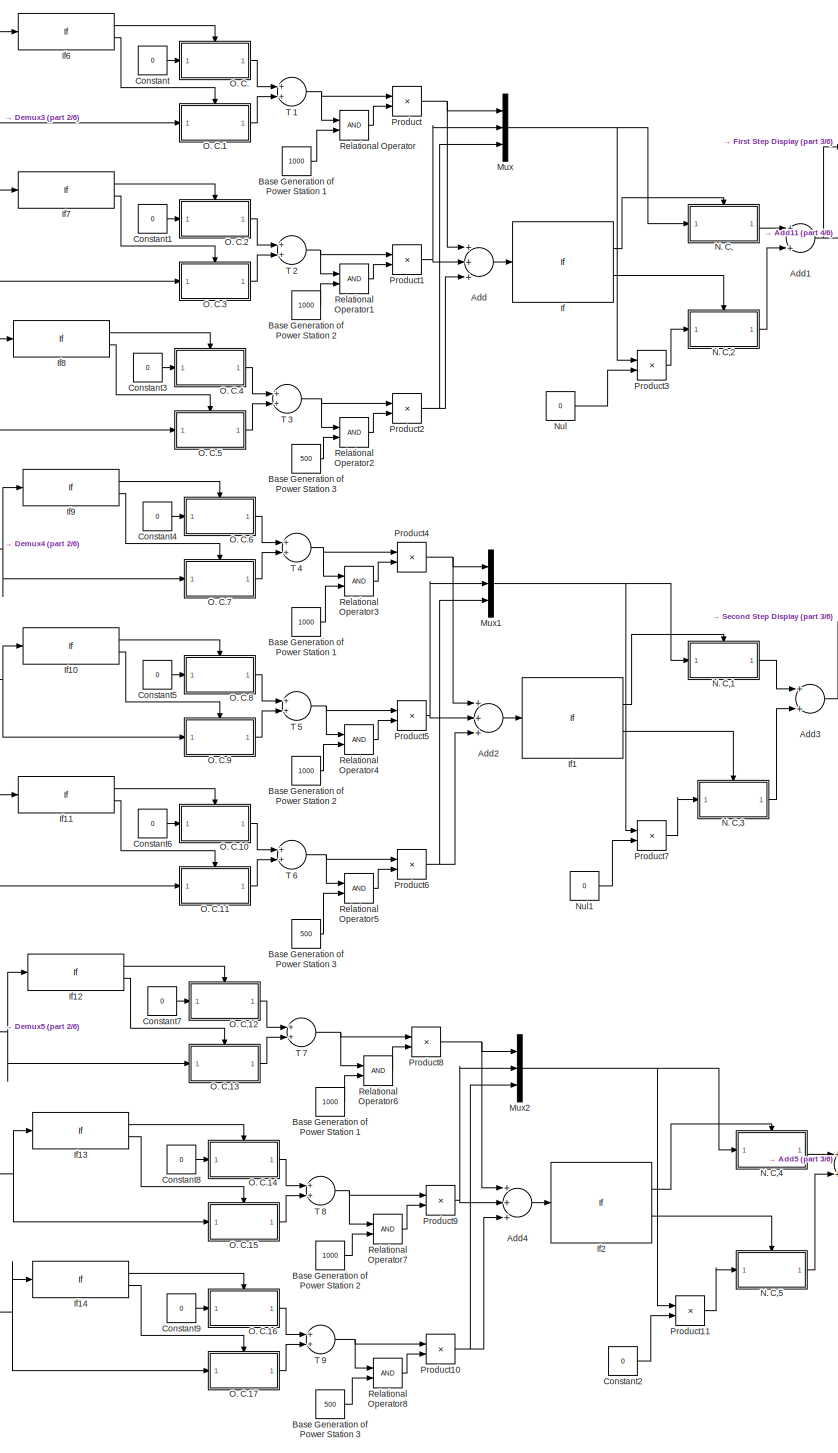
[diagram: root canvas - part 1/6, left side, full height]
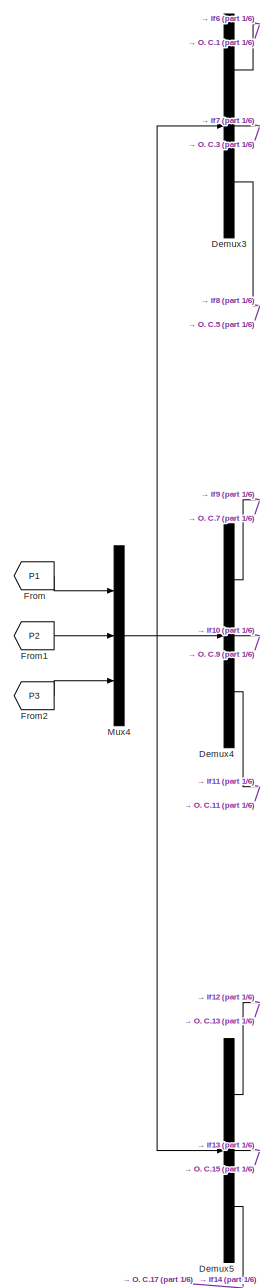
[diagram: root canvas - part 2/6, left side, full height]
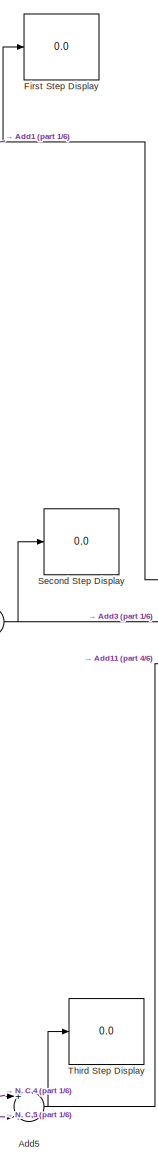
[diagram: root canvas - part 3/6, center side, full height]
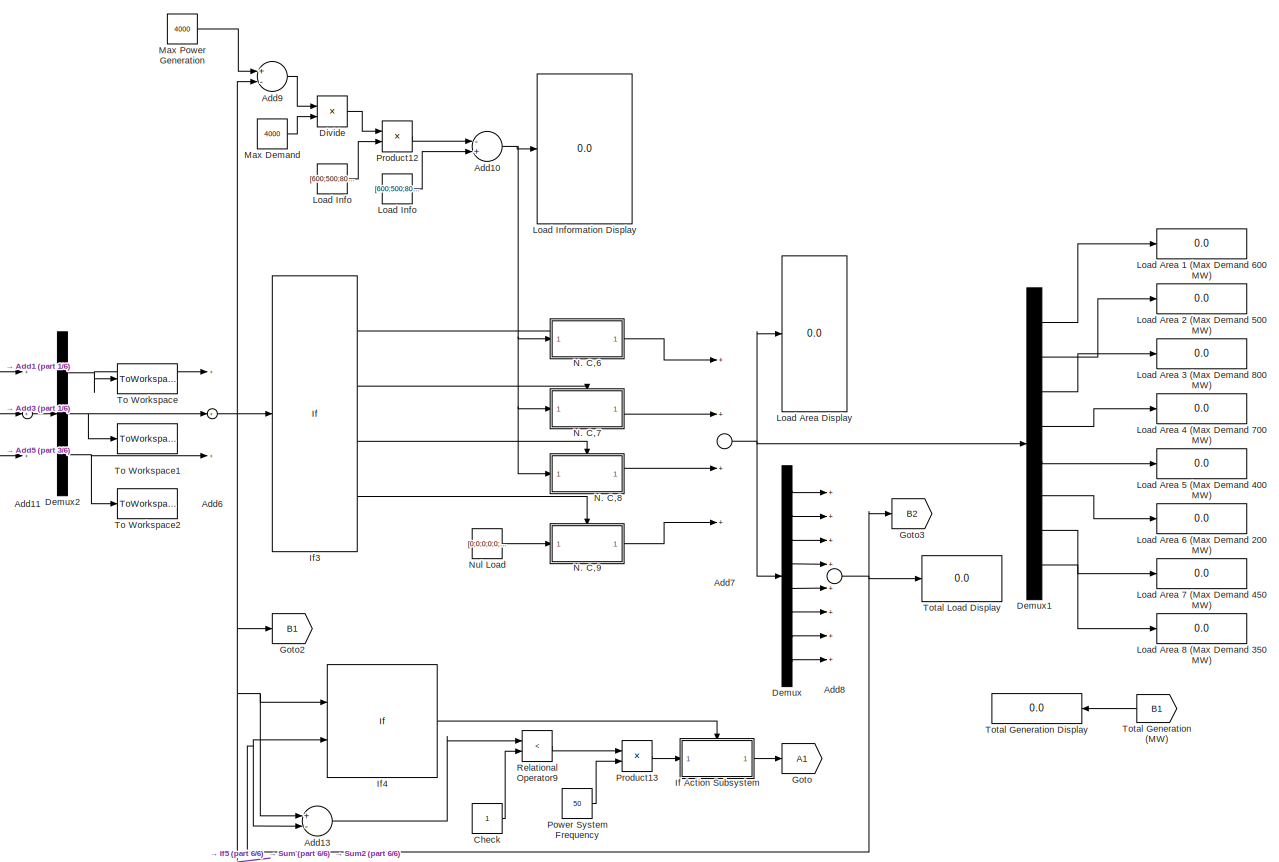
[diagram: root canvas - part 4/6, middle right region]
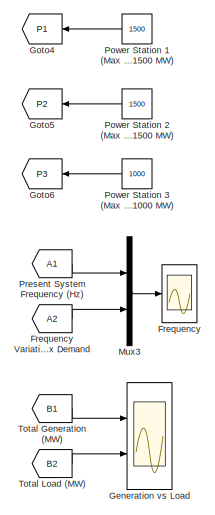
[diagram: root canvas - part 5/6, middle right region]
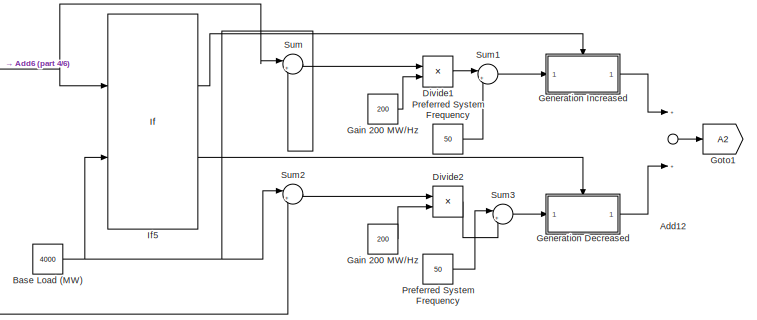
[diagram: root canvas - part 6/6, bottom right region]
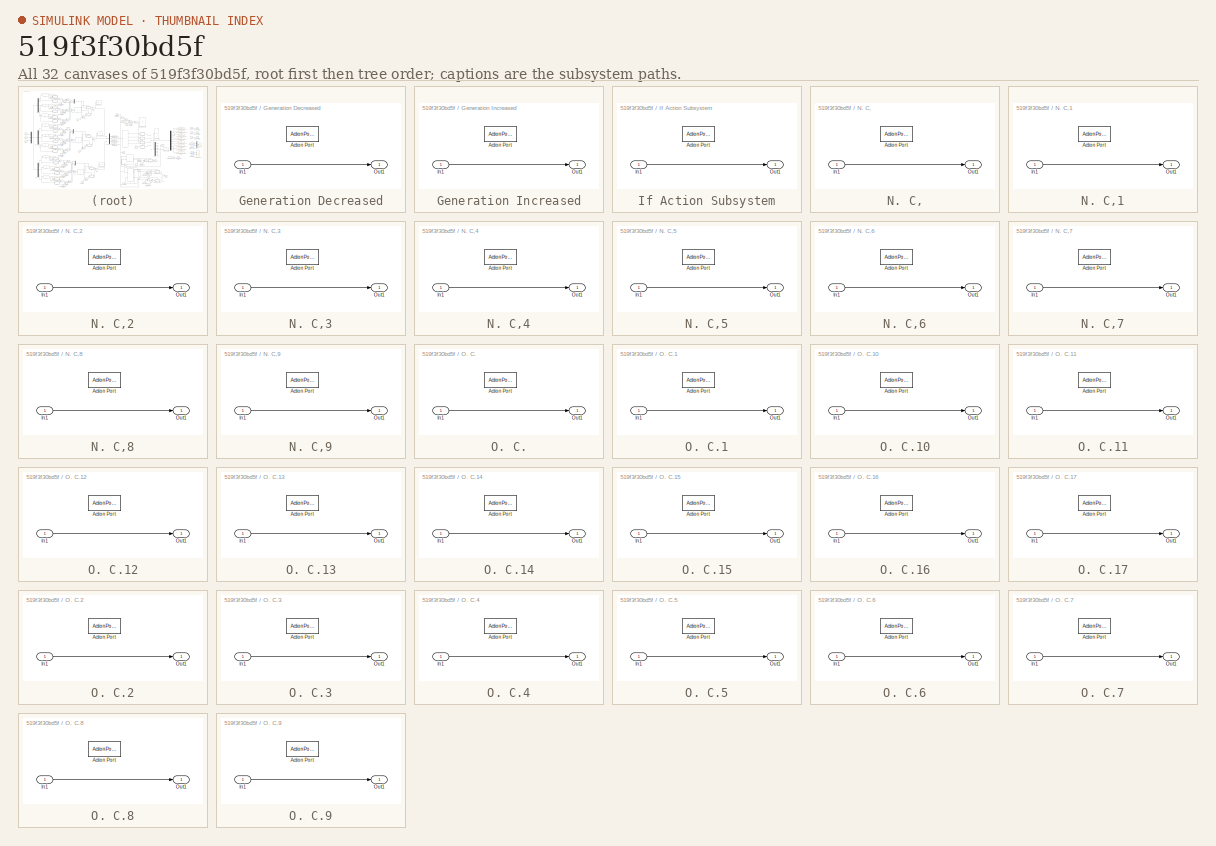
[diagram: thumbnail index - all 32 canvases of the model, root first then tree order]
MODEL slx_519f3f30bd5f
KIND model
BLOCK [Sum] Add
  InputSameDT = off
  Inputs = +++
  OutDataTypeStr = Inherit: Inherit via internal rule
  Ports = [3, 1]
  SaturateOnIntegerOverflow = off
BLOCK [Sum] Add1
  InputSameDT = off
  OutDataTypeStr = Inherit: Inherit via internal rule
  Ports = [2, 1]
  SaturateOnIntegerOverflow = off
BLOCK [Sum] Add10
  InputSameDT = off
  Inputs = -+
  OutDataTypeStr = Inherit: Inherit via internal rule
  Ports = [2, 1]
  SaturateOnIntegerOverflow = off
BLOCK [Sum] Add11
  InputSameDT = off
  Inputs = +++
  OutDataTypeStr = Inherit: Inherit via internal rule
  Ports = [3, 1]
  SaturateOnIntegerOverflow = off
BLOCK [Sum] Add12
  InputSameDT = off
  OutDataTypeStr = Inherit: Inherit via internal rule
  Ports = [2, 1]
  SaturateOnIntegerOverflow = off
BLOCK [Sum] Add13
  InputSameDT = off
  Inputs = +-
  OutDataTypeStr = Inherit: Inherit via internal rule
  Ports = [2, 1]
  SaturateOnIntegerOverflow = off
BLOCK [Sum] Add2
  InputSameDT = off
  Inputs = +++
  OutDataTypeStr = Inherit: Inherit via internal rule
  Ports = [3, 1]
  SaturateOnIntegerOverflow = off
BLOCK [Sum] Add3
  InputSameDT = off
  OutDataTypeStr = Inherit: Inherit via internal rule
  Ports = [2, 1]
  SaturateOnIntegerOverflow = off
BLOCK [Sum] Add4
  InputSameDT = off
  Inputs = +++
  OutDataTypeStr = Inherit: Inherit via internal rule
  Ports = [3, 1]
  SaturateOnIntegerOverflow = off
BLOCK [Sum] Add5
  InputSameDT = off
  OutDataTypeStr = Inherit: Inherit via internal rule
  Ports = [2, 1]
  SaturateOnIntegerOverflow = off
BLOCK [Sum] Add6
  InputSameDT = off
  Inputs = +++
  OutDataTypeStr = Inherit: Inherit via internal rule
  Ports = [3, 1]
  SaturateOnIntegerOverflow = off
BLOCK [Sum] Add7
  InputSameDT = off
  Inputs = ++++
  OutDataTypeStr = Inherit: Inherit via internal rule
  Ports = [4, 1]
  SaturateOnIntegerOverflow = off
BLOCK [Sum] Add8
  InputSameDT = off
  Inputs = ++++++++
  OutDataTypeStr = Inherit: Inherit via internal rule
  Ports = [8, 1]
  SaturateOnIntegerOverflow = off
BLOCK [Sum] Add9
  InputSameDT = off
  Inputs = +-
  OutDataTypeStr = Inherit: Inherit via internal rule
  Ports = [2, 1]
  SaturateOnIntegerOverflow = off
BLOCK [Constant] Base Generation of Power Station 1
  Value = 1000
BLOCK [Constant] Base Generation of Power Station 1 
  Value = 1000
BLOCK [Constant] Base Generation of Power Station 1  
  Value = 1000
BLOCK [Constant] Base Generation of Power Station 2
  Value = 1000
BLOCK [Constant] Base Generation of Power Station 2 
  Value = 1000
BLOCK [Constant] Base Generation of Power Station 2  
  Value = 1000
BLOCK [Constant] Base Generation of Power Station 3
  Value = 500
BLOCK [Constant] Base Generation of Power Station 3 
  Value = 500
BLOCK [Constant] Base Generation of Power Station 3  
  Value = 500
BLOCK [Constant] Base Load (MW)
  Value = 4000
BLOCK [Constant] Check
BLOCK [Constant] Constant
  Value = 0
BLOCK [Constant] Constant1
  Value = 0
BLOCK [Constant] Constant2
  Value = 0
BLOCK [Constant] Constant3
  Value = 0
BLOCK [Constant] Constant4
  Value = 0
BLOCK [Constant] Constant5
  Value = 0
BLOCK [Constant] Constant6
  Value = 0
BLOCK [Constant] Constant7
  Value = 0
BLOCK [Constant] Constant8
  Value = 0
BLOCK [Constant] Constant9
  Value = 0
BLOCK [Demux] Demux
  DisplayOption = bar
  Outputs = 8
  Ports = [1, 8]
BLOCK [Demux] Demux1
  DisplayOption = bar
  Outputs = 8
  Ports = [1, 8]
BLOCK [Demux] Demux2
  DisplayOption = bar
  Outputs = 3
  Ports = [1, 3]
BLOCK [Demux] Demux3
  DisplayOption = bar
  Outputs = 3
  Ports = [1, 3]
BLOCK [Demux] Demux4
  DisplayOption = bar
  Outputs = 3
  Ports = [1, 3]
BLOCK [Demux] Demux5
  DisplayOption = bar
  Outputs = 3
  Ports = [1, 3]
BLOCK [Product] Divide
  InputSameDT = off
  Inputs = */
  OutDataTypeStr = Inherit: Inherit via internal rule
  Ports = [2, 1]
  RndMeth = Floor
  SaturateOnIntegerOverflow = off
BLOCK [Product] Divide1
  InputSameDT = off
  Inputs = */
  OutDataTypeStr = Inherit: Inherit via internal rule
  Ports = [2, 1]
  RndMeth = Floor
  SaturateOnIntegerOverflow = off
BLOCK [Product] Divide2
  InputSameDT = off
  Inputs = */
  OutDataTypeStr = Inherit: Inherit via internal rule
  Ports = [2, 1]
  RndMeth = Floor
  SaturateOnIntegerOverflow = off
BLOCK [Display] First Step Display
  Decimation = 1
  Lockdown = off
  Ports = [1]
BLOCK [Scope] Frequency
  DataFormat = StructureWithTime
  Floating = off
  LegendLocations = 0.78941     0.86821     0.18082    0.052326
  NumInputPorts = 1
  Ports = [1]
  SampleTime = 0
  ShowLegends = on
  TickLabels = on
BLOCK [From] Frequency Variation w.r.t Max Demand
  GotoTag = A2
BLOCK [From] From
  GotoTag = P1
BLOCK [From] From1
  GotoTag = P2
BLOCK [From] From2
  GotoTag = P3
BLOCK [Constant] Gain 200 MW//Hz
  Value = 200
BLOCK [Constant] Gain 200 MW//Hz 
  Value = 200
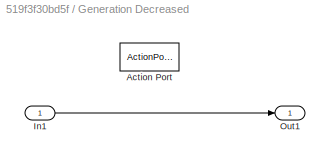
BLOCK [SubSystem] Generation Decreased
  FunctionWithSeparateData = off
  MaskHideContents = off
  MinAlgLoopOccurrences = off
  Opaque = off
  Ports = [1, 1, 0, 0, 0, 0, 0, 1]
  PropExecContextOutsideSubsystem = off
  RTWSystemCode = Auto
  RequestExecContextInheritance = off
  TreatAsAtomicUnit = on
BLOCK [ActionPort] Generation Decreased/Action Port
  ActionType = elseif
BLOCK [Inport] Generation Decreased/In1
  IconDisplay = Port number
BLOCK [Outport] Generation Decreased/Out1
  IconDisplay = Port number
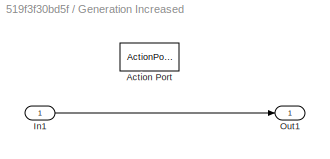
BLOCK [SubSystem] Generation Increased
  FunctionWithSeparateData = off
  MaskHideContents = off
  MinAlgLoopOccurrences = off
  Opaque = off
  Ports = [1, 1, 0, 0, 0, 0, 0, 1]
  PropExecContextOutsideSubsystem = off
  RTWSystemCode = Auto
  RequestExecContextInheritance = off
  TreatAsAtomicUnit = on
BLOCK [ActionPort] Generation Increased/Action Port
  ActionType = then
BLOCK [Inport] Generation Increased/In1
  IconDisplay = Port number
BLOCK [Outport] Generation Increased/Out1
  IconDisplay = Port number
BLOCK [Scope] Generation vs Load
  DataFormat = StructureWithTime
  Floating = off
  LegendLocations = 0.85639     0.91642     0.12152    0.029554\n0.87689     0.45131     0.10102    0.029554
  NumInputPorts = 2
  Ports = [2]
  SampleTime = 0
  SaveName = ScopeData1
  ShowLegends = on
  YMax = 5~5
  YMin = -5~-5
BLOCK [Goto] Goto
  GotoTag = A1
BLOCK [Goto] Goto1
  GotoTag = A2
BLOCK [Goto] Goto2
  GotoTag = B1
BLOCK [Goto] Goto3
  GotoTag = B2
BLOCK [Goto] Goto4
  GotoTag = P1
BLOCK [Goto] Goto5
  GotoTag = P2
BLOCK [Goto] Goto6
  GotoTag = P3
BLOCK [If] If
  IfExpression = u1 <= 4000 & u1>=2500
  Ports = [1, 2]
BLOCK [SubSystem] If Action Subsystem
  FunctionWithSeparateData = off
  MaskHideContents = off
  MinAlgLoopOccurrences = off
  Opaque = off
  Ports = [1, 1, 0, 0, 0, 0, 0, 1]
  PropExecContextOutsideSubsystem = off
  RTWSystemCode = Auto
  RequestExecContextInheritance = off
  TreatAsAtomicUnit = on
BLOCK [ActionPort] If Action Subsystem/Action Port
  ActionType = then
BLOCK [Inport] If Action Subsystem/In1
  IconDisplay = Port number
BLOCK [Outport] If Action Subsystem/Out1
  IconDisplay = Port number
BLOCK [If] If1
  IfExpression = u1 < 2500 & u1 >= 1500
  Ports = [1, 2]
BLOCK [If] If10
  IfExpression = u1 > 1500
  Ports = [1, 2]
BLOCK [If] If11
  IfExpression = u1 > 1000
  Ports = [1, 2]
BLOCK [If] If12
  IfExpression = u1 > 1500
  Ports = [1, 2]
BLOCK [If] If13
  IfExpression = u1 > 1500
  Ports = [1, 2]
BLOCK [If] If14
  IfExpression = u1 > 1000
  Ports = [1, 2]
BLOCK [If] If2
  IfExpression = u1 < 1500 & u1 >= 500
  Ports = [1, 2]
BLOCK [If] If3
  ElseIfExpressions = u1 < 2500 & u1 >= 1500, u1 < 1500 & u1 >= 500
  IfExpression = u1 <= 4000 & u1>=2500
  Ports = [1, 4]
BLOCK [If] If4
  IfExpression = u1 >0 & u2>0
  NumInputs = 2
  Ports = [2, 1]
  ShowElse = off
BLOCK [If] If5
  ElseIfExpressions = u1<u2
  IfExpression = u1>u2
  NumInputs = 2
  Ports = [2, 2]
  ShowElse = off
BLOCK [If] If6
  IfExpression = u1 > 1500
  Ports = [1, 2]
BLOCK [If] If7
  IfExpression = u1 > 1500
  Ports = [1, 2]
BLOCK [If] If8
  IfExpression = u1 > 1000
  Ports = [1, 2]
BLOCK [If] If9
  IfExpression = u1 > 1500
  Ports = [1, 2]
BLOCK [Display] Load Area 1 (Max Demand 600 MW)
  Decimation = 1
  Lockdown = off
  Ports = [1]
BLOCK [Display] Load Area 2 (Max Demand 500 MW)
  Decimation = 1
  Lockdown = off
  Ports = [1]
BLOCK [Display] Load Area 3 (Max Demand 800 MW)
  Decimation = 1
  Lockdown = off
  Ports = [1]
BLOCK [Display] Load Area 4 (Max Demand 700 MW)
  Decimation = 1
  Lockdown = off
  Ports = [1]
BLOCK [Display] Load Area 5 (Max Demand 400 MW)
  Decimation = 1
  Lockdown = off
  Ports = [1]
BLOCK [Display] Load Area 6 (Max Demand 200 MW)
  Decimation = 1
  Lockdown = off
  Ports = [1]
BLOCK [Display] Load Area 7 (Max Demand 450 MW)
  Decimation = 1
  Lockdown = off
  Ports = [1]
BLOCK [Display] Load Area 8 (Max Demand 350 MW)
  Decimation = 1
  Lockdown = off
  Ports = [1]
BLOCK [Display] Load Area Display
  Decimation = 1
  Lockdown = off
  Ports = [1]
BLOCK [Constant] Load Info
  Value = [600;500;800;700;400;200;450;350]
BLOCK [Constant] Load Info 
  Value = [600;500;800;700;400;200;450;350]
BLOCK [Display] Load Information Display
  Decimation = 1
  Lockdown = off
  Ports = [1]
BLOCK [Constant] Max Demand
  Value = 4000
BLOCK [Constant] Max Power Generation
  Value = 4000
BLOCK [Mux] Mux
  DisplayOption = bar
  Inputs = 3
  Ports = [3, 1]
BLOCK [Mux] Mux1
  DisplayOption = bar
  Inputs = 3
  Ports = [3, 1]
BLOCK [Mux] Mux2
  DisplayOption = bar
  Inputs = 3
  Ports = [3, 1]
BLOCK [Mux] Mux3
  DisplayOption = bar
  Inputs = 2
  Ports = [2, 1]
BLOCK [Mux] Mux4
  DisplayOption = bar
  Inputs = 3
  Ports = [3, 1]
BLOCK [SubSystem] N. C,
  FunctionWithSeparateData = off
  MaskHideContents = off
  MinAlgLoopOccurrences = off
  Opaque = off
  Ports = [1, 1, 0, 0, 0, 0, 0, 1]
  PropExecContextOutsideSubsystem = off
  RTWSystemCode = Auto
  RequestExecContextInheritance = off
  TreatAsAtomicUnit = on
BLOCK [ActionPort] N. C,/Action Port
  ActionType = then
BLOCK [Inport] N. C,/In1
  IconDisplay = Port number
BLOCK [Outport] N. C,/Out1
  IconDisplay = Port number
BLOCK [SubSystem] N. C,1
  FunctionWithSeparateData = off
  MaskHideContents = off
  MinAlgLoopOccurrences = off
  Opaque = off
  Ports = [1, 1, 0, 0, 0, 0, 0, 1]
  PropExecContextOutsideSubsystem = off
  RTWSystemCode = Auto
  RequestExecContextInheritance = off
  TreatAsAtomicUnit = on
BLOCK [ActionPort] N. C,1/Action Port
  ActionType = then
BLOCK [Inport] N. C,1/In1
  IconDisplay = Port number
BLOCK [Outport] N. C,1/Out1
  IconDisplay = Port number
BLOCK [SubSystem] N. C,2
  FunctionWithSeparateData = off
  MaskHideContents = off
  MinAlgLoopOccurrences = off
  Opaque = off
  Ports = [1, 1, 0, 0, 0, 0, 0, 1]
  PropExecContextOutsideSubsystem = off
  RTWSystemCode = Auto
  RequestExecContextInheritance = off
  TreatAsAtomicUnit = on
BLOCK [ActionPort] N. C,2/Action Port
  ActionType = else
BLOCK [Inport] N. C,2/In1
  IconDisplay = Port number
BLOCK [Outport] N. C,2/Out1
  IconDisplay = Port number
BLOCK [SubSystem] N. C,3
  FunctionWithSeparateData = off
  MaskHideContents = off
  MinAlgLoopOccurrences = off
  Opaque = off
  Ports = [1, 1, 0, 0, 0, 0, 0, 1]
  PropExecContextOutsideSubsystem = off
  RTWSystemCode = Auto
  RequestExecContextInheritance = off
  TreatAsAtomicUnit = on
BLOCK [ActionPort] N. C,3/Action Port
  ActionType = else
BLOCK [Inport] N. C,3/In1
  IconDisplay = Port number
BLOCK [Outport] N. C,3/Out1
  IconDisplay = Port number
BLOCK [SubSystem] N. C,4
  FunctionWithSeparateData = off
  MaskHideContents = off
  MinAlgLoopOccurrences = off
  Opaque = off
  Ports = [1, 1, 0, 0, 0, 0, 0, 1]
  PropExecContextOutsideSubsystem = off
  RTWSystemCode = Auto
  RequestExecContextInheritance = off
  TreatAsAtomicUnit = on
BLOCK [ActionPort] N. C,4/Action Port
  ActionType = then
BLOCK [Inport] N. C,4/In1
  IconDisplay = Port number
BLOCK [Outport] N. C,4/Out1
  IconDisplay = Port number
BLOCK [SubSystem] N. C,5
  FunctionWithSeparateData = off
  MaskHideContents = off
  MinAlgLoopOccurrences = off
  Opaque = off
  Ports = [1, 1, 0, 0, 0, 0, 0, 1]
  PropExecContextOutsideSubsystem = off
  RTWSystemCode = Auto
  RequestExecContextInheritance = off
  TreatAsAtomicUnit = on
BLOCK [ActionPort] N. C,5/Action Port
  ActionType = else
BLOCK [Inport] N. C,5/In1
  IconDisplay = Port number
BLOCK [Outport] N. C,5/Out1
  IconDisplay = Port number
BLOCK [SubSystem] N. C,6
  FunctionWithSeparateData = off
  MaskHideContents = off
  MinAlgLoopOccurrences = off
  Opaque = off
  Ports = [1, 1, 0, 0, 0, 0, 0, 1]
  PropExecContextOutsideSubsystem = off
  RTWSystemCode = Auto
  RequestExecContextInheritance = off
  TreatAsAtomicUnit = on
BLOCK [ActionPort] N. C,6/Action Port
  ActionType = then
BLOCK [Inport] N. C,6/In1
  IconDisplay = Port number
BLOCK [Outport] N. C,6/Out1
  IconDisplay = Port number
BLOCK [SubSystem] N. C,7
  FunctionWithSeparateData = off
  MaskHideContents = off
  MinAlgLoopOccurrences = off
  Opaque = off
  Ports = [1, 1, 0, 0, 0, 0, 0, 1]
  PropExecContextOutsideSubsystem = off
  RTWSystemCode = Auto
  RequestExecContextInheritance = off
  TreatAsAtomicUnit = on
BLOCK [ActionPort] N. C,7/Action Port
  ActionType = elseif
BLOCK [Inport] N. C,7/In1
  IconDisplay = Port number
BLOCK [Outport] N. C,7/Out1
  IconDisplay = Port number
BLOCK [SubSystem] N. C,8
  FunctionWithSeparateData = off
  MaskHideContents = off
  MinAlgLoopOccurrences = off
  Opaque = off
  Ports = [1, 1, 0, 0, 0, 0, 0, 1]
  PropExecContextOutsideSubsystem = off
  RTWSystemCode = Auto
  RequestExecContextInheritance = off
  TreatAsAtomicUnit = on
BLOCK [ActionPort] N. C,8/Action Port
  ActionType = elseif
BLOCK [Inport] N. C,8/In1
  IconDisplay = Port number
BLOCK [Outport] N. C,8/Out1
  IconDisplay = Port number
BLOCK [SubSystem] N. C,9
  FunctionWithSeparateData = off
  MaskHideContents = off
  MinAlgLoopOccurrences = off
  Opaque = off
  Ports = [1, 1, 0, 0, 0, 0, 0, 1]
  PropExecContextOutsideSubsystem = off
  RTWSystemCode = Auto
  RequestExecContextInheritance = off
  TreatAsAtomicUnit = on
BLOCK [ActionPort] N. C,9/Action Port
  ActionType = else
BLOCK [Inport] N. C,9/In1
  IconDisplay = Port number
BLOCK [Outport] N. C,9/Out1
  IconDisplay = Port number
BLOCK [Constant] Nul
  Value = 0
BLOCK [Constant] Nul Load
  Value = [0;0;0;0;0;0;0;0]
BLOCK [Constant] Nul1
  Value = 0
BLOCK [SubSystem] O. C.
  FunctionWithSeparateData = off
  MaskHideContents = off
  MinAlgLoopOccurrences = off
  Opaque = off
  Ports = [1, 1, 0, 0, 0, 0, 0, 1]
  PropExecContextOutsideSubsystem = off
  RTWSystemCode = Auto
  RequestExecContextInheritance = off
  TreatAsAtomicUnit = on
BLOCK [ActionPort] O. C./Action Port
  ActionType = then
BLOCK [Inport] O. C./In1
  IconDisplay = Port number
BLOCK [Outport] O. C./Out1
  IconDisplay = Port number
BLOCK [SubSystem] O. C.1
  FunctionWithSeparateData = off
  MaskHideContents = off
  MinAlgLoopOccurrences = off
  Opaque = off
  Ports = [1, 1, 0, 0, 0, 0, 0, 1]
  PropExecContextOutsideSubsystem = off
  RTWSystemCode = Auto
  RequestExecContextInheritance = off
  TreatAsAtomicUnit = on
BLOCK [ActionPort] O. C.1/Action Port
  ActionType = else
BLOCK [Inport] O. C.1/In1
  IconDisplay = Port number
BLOCK [Outport] O. C.1/Out1
  IconDisplay = Port number
BLOCK [SubSystem] O. C.10
  FunctionWithSeparateData = off
  MaskHideContents = off
  MinAlgLoopOccurrences = off
  Opaque = off
  Ports = [1, 1, 0, 0, 0, 0, 0, 1]
  PropExecContextOutsideSubsystem = off
  RTWSystemCode = Auto
  RequestExecContextInheritance = off
  TreatAsAtomicUnit = on
BLOCK [ActionPort] O. C.10/Action Port
  ActionType = then
BLOCK [Inport] O. C.10/In1
  IconDisplay = Port number
BLOCK [Outport] O. C.10/Out1
  IconDisplay = Port number
BLOCK [SubSystem] O. C.11
  FunctionWithSeparateData = off
  MaskHideContents = off
  MinAlgLoopOccurrences = off
  Opaque = off
  Ports = [1, 1, 0, 0, 0, 0, 0, 1]
  PropExecContextOutsideSubsystem = off
  RTWSystemCode = Auto
  RequestExecContextInheritance = off
  TreatAsAtomicUnit = on
BLOCK [ActionPort] O. C.11/Action Port
  ActionType = else
BLOCK [Inport] O. C.11/In1
  IconDisplay = Port number
BLOCK [Outport] O. C.11/Out1
  IconDisplay = Port number
BLOCK [SubSystem] O. C.12
  FunctionWithSeparateData = off
  MaskHideContents = off
  MinAlgLoopOccurrences = off
  Opaque = off
  Ports = [1, 1, 0, 0, 0, 0, 0, 1]
  PropExecContextOutsideSubsystem = off
  RTWSystemCode = Auto
  RequestExecContextInheritance = off
  TreatAsAtomicUnit = on
BLOCK [ActionPort] O. C.12/Action Port
  ActionType = then
BLOCK [Inport] O. C.12/In1
  IconDisplay = Port number
BLOCK [Outport] O. C.12/Out1
  IconDisplay = Port number
BLOCK [SubSystem] O. C.13
  FunctionWithSeparateData = off
  MaskHideContents = off
  MinAlgLoopOccurrences = off
  Opaque = off
  Ports = [1, 1, 0, 0, 0, 0, 0, 1]
  PropExecContextOutsideSubsystem = off
  RTWSystemCode = Auto
  RequestExecContextInheritance = off
  TreatAsAtomicUnit = on
BLOCK [ActionPort] O. C.13/Action Port
  ActionType = else
BLOCK [Inport] O. C.13/In1
  IconDisplay = Port number
BLOCK [Outport] O. C.13/Out1
  IconDisplay = Port number
BLOCK [SubSystem] O. C.14
  FunctionWithSeparateData = off
  MaskHideContents = off
  MinAlgLoopOccurrences = off
  Opaque = off
  Ports = [1, 1, 0, 0, 0, 0, 0, 1]
  PropExecContextOutsideSubsystem = off
  RTWSystemCode = Auto
  RequestExecContextInheritance = off
  TreatAsAtomicUnit = on
BLOCK [ActionPort] O. C.14/Action Port
  ActionType = then
BLOCK [Inport] O. C.14/In1
  IconDisplay = Port number
BLOCK [Outport] O. C.14/Out1
  IconDisplay = Port number
BLOCK [SubSystem] O. C.15
  FunctionWithSeparateData = off
  MaskHideContents = off
  MinAlgLoopOccurrences = off
  Opaque = off
  Ports = [1, 1, 0, 0, 0, 0, 0, 1]
  PropExecContextOutsideSubsystem = off
  RTWSystemCode = Auto
  RequestExecContextInheritance = off
  TreatAsAtomicUnit = on
BLOCK [ActionPort] O. C.15/Action Port
  ActionType = else
BLOCK [Inport] O. C.15/In1
  IconDisplay = Port number
BLOCK [Outport] O. C.15/Out1
  IconDisplay = Port number
BLOCK [SubSystem] O. C.16
  FunctionWithSeparateData = off
  MaskHideContents = off
  MinAlgLoopOccurrences = off
  Opaque = off
  Ports = [1, 1, 0, 0, 0, 0, 0, 1]
  PropExecContextOutsideSubsystem = off
  RTWSystemCode = Auto
  RequestExecContextInheritance = off
  TreatAsAtomicUnit = on
BLOCK [ActionPort] O. C.16/Action Port
  ActionType = then
BLOCK [Inport] O. C.16/In1
  IconDisplay = Port number
BLOCK [Outport] O. C.16/Out1
  IconDisplay = Port number
BLOCK [SubSystem] O. C.17
  FunctionWithSeparateData = off
  MaskHideContents = off
  MinAlgLoopOccurrences = off
  Opaque = off
  Ports = [1, 1, 0, 0, 0, 0, 0, 1]
  PropExecContextOutsideSubsystem = off
  RTWSystemCode = Auto
  RequestExecContextInheritance = off
  TreatAsAtomicUnit = on
BLOCK [ActionPort] O. C.17/Action Port
  ActionType = else
BLOCK [Inport] O. C.17/In1
  IconDisplay = Port number
BLOCK [Outport] O. C.17/Out1
  IconDisplay = Port number
BLOCK [SubSystem] O. C.2
  FunctionWithSeparateData = off
  MaskHideContents = off
  MinAlgLoopOccurrences = off
  Opaque = off
  Ports = [1, 1, 0, 0, 0, 0, 0, 1]
  PropExecContextOutsideSubsystem = off
  RTWSystemCode = Auto
  RequestExecContextInheritance = off
  TreatAsAtomicUnit = on
BLOCK [ActionPort] O. C.2/Action Port
  ActionType = then
BLOCK [Inport] O. C.2/In1
  IconDisplay = Port number
BLOCK [Outport] O. C.2/Out1
  IconDisplay = Port number
BLOCK [SubSystem] O. C.3
  FunctionWithSeparateData = off
  MaskHideContents = off
  MinAlgLoopOccurrences = off
  Opaque = off
  Ports = [1, 1, 0, 0, 0, 0, 0, 1]
  PropExecContextOutsideSubsystem = off
  RTWSystemCode = Auto
  RequestExecContextInheritance = off
  TreatAsAtomicUnit = on
BLOCK [ActionPort] O. C.3/Action Port
  ActionType = else
BLOCK [Inport] O. C.3/In1
  IconDisplay = Port number
BLOCK [Outport] O. C.3/Out1
  IconDisplay = Port number
BLOCK [SubSystem] O. C.4
  FunctionWithSeparateData = off
  MaskHideContents = off
  MinAlgLoopOccurrences = off
  Opaque = off
  Ports = [1, 1, 0, 0, 0, 0, 0, 1]
  PropExecContextOutsideSubsystem = off
  RTWSystemCode = Auto
  RequestExecContextInheritance = off
  TreatAsAtomicUnit = on
BLOCK [ActionPort] O. C.4/Action Port
  ActionType = then
BLOCK [Inport] O. C.4/In1
  IconDisplay = Port number
BLOCK [Outport] O. C.4/Out1
  IconDisplay = Port number
BLOCK [SubSystem] O. C.5
  FunctionWithSeparateData = off
  MaskHideContents = off
  MinAlgLoopOccurrences = off
  Opaque = off
  Ports = [1, 1, 0, 0, 0, 0, 0, 1]
  PropExecContextOutsideSubsystem = off
  RTWSystemCode = Auto
  RequestExecContextInheritance = off
  TreatAsAtomicUnit = on
BLOCK [ActionPort] O. C.5/Action Port
  ActionType = else
BLOCK [Inport] O. C.5/In1
  IconDisplay = Port number
BLOCK [Outport] O. C.5/Out1
  IconDisplay = Port number
BLOCK [SubSystem] O. C.6
  FunctionWithSeparateData = off
  MaskHideContents = off
  MinAlgLoopOccurrences = off
  Opaque = off
  Ports = [1, 1, 0, 0, 0, 0, 0, 1]
  PropExecContextOutsideSubsystem = off
  RTWSystemCode = Auto
  RequestExecContextInheritance = off
  TreatAsAtomicUnit = on
BLOCK [ActionPort] O. C.6/Action Port
  ActionType = then
BLOCK [Inport] O. C.6/In1
  IconDisplay = Port number
BLOCK [Outport] O. C.6/Out1
  IconDisplay = Port number
BLOCK [SubSystem] O. C.7
  FunctionWithSeparateData = off
  MaskHideContents = off
  MinAlgLoopOccurrences = off
  Opaque = off
  Ports = [1, 1, 0, 0, 0, 0, 0, 1]
  PropExecContextOutsideSubsystem = off
  RTWSystemCode = Auto
  RequestExecContextInheritance = off
  TreatAsAtomicUnit = on
BLOCK [ActionPort] O. C.7/Action Port
  ActionType = else
BLOCK [Inport] O. C.7/In1
  IconDisplay = Port number
BLOCK [Outport] O. C.7/Out1
  IconDisplay = Port number
BLOCK [SubSystem] O. C.8
  FunctionWithSeparateData = off
  MaskHideContents = off
  MinAlgLoopOccurrences = off
  Opaque = off
  Ports = [1, 1, 0, 0, 0, 0, 0, 1]
  PropExecContextOutsideSubsystem = off
  RTWSystemCode = Auto
  RequestExecContextInheritance = off
  TreatAsAtomicUnit = on
BLOCK [ActionPort] O. C.8/Action Port
  ActionType = then
BLOCK [Inport] O. C.8/In1
  IconDisplay = Port number
BLOCK [Outport] O. C.8/Out1
  IconDisplay = Port number
BLOCK [SubSystem] O. C.9
  FunctionWithSeparateData = off
  MaskHideContents = off
  MinAlgLoopOccurrences = off
  Opaque = off
  Ports = [1, 1, 0, 0, 0, 0, 0, 1]
  PropExecContextOutsideSubsystem = off
  RTWSystemCode = Auto
  RequestExecContextInheritance = off
  TreatAsAtomicUnit = on
BLOCK [ActionPort] O. C.9/Action Port
  ActionType = else
BLOCK [Inport] O. C.9/In1
  IconDisplay = Port number
BLOCK [Outport] O. C.9/Out1
  IconDisplay = Port number
BLOCK [Constant] Power Station 1 (Max Generation Capacity 1500 MW)
  Value = 1500
BLOCK [Constant] Power Station 2 (Max Generation Capacity 1500 MW)
  Value = 1500
BLOCK [Constant] Power Station 3 (Max Generation Capacity 1000 MW)
  Value = 1000
BLOCK [Constant] Power System Frequency
  Value = 50
BLOCK [Constant] Preferred System Frequency
  Value = 50
BLOCK [Constant] Preferred System Frequency 
  Value = 50
BLOCK [From] Present System Frequency (Hz)
  GotoTag = A1
BLOCK [Product] Product
  InputSameDT = off
  OutDataTypeStr = Inherit: Inherit via internal rule
  Ports = [2, 1]
  RndMeth = Floor
  SaturateOnIntegerOverflow = off
BLOCK [Product] Product1
  InputSameDT = off
  OutDataTypeStr = Inherit: Inherit via internal rule
  Ports = [2, 1]
  RndMeth = Floor
  SaturateOnIntegerOverflow = off
BLOCK [Product] Product10
  InputSameDT = off
  OutDataTypeStr = Inherit: Inherit via internal rule
  Ports = [2, 1]
  RndMeth = Floor
  SaturateOnIntegerOverflow = off
BLOCK [Product] Product11
  InputSameDT = off
  OutDataTypeStr = Inherit: Inherit via internal rule
  Ports = [2, 1]
  RndMeth = Floor
  SaturateOnIntegerOverflow = off
BLOCK [Product] Product12
  InputSameDT = off
  OutDataTypeStr = Inherit: Inherit via internal rule
  Ports = [2, 1]
  RndMeth = Floor
  SaturateOnIntegerOverflow = off
BLOCK [Product] Product13
  InputSameDT = off
  OutDataTypeStr = Inherit: Inherit via internal rule
  Ports = [2, 1]
  RndMeth = Floor
  SaturateOnIntegerOverflow = off
BLOCK [Product] Product2
  InputSameDT = off
  OutDataTypeStr = Inherit: Inherit via internal rule
  Ports = [2, 1]
  RndMeth = Floor
  SaturateOnIntegerOverflow = off
BLOCK [Product] Product3
  InputSameDT = off
  OutDataTypeStr = Inherit: Inherit via internal rule
  Ports = [2, 1]
  RndMeth = Floor
  SaturateOnIntegerOverflow = off
BLOCK [Product] Product4
  InputSameDT = off
  OutDataTypeStr = Inherit: Inherit via internal rule
  Ports = [2, 1]
  RndMeth = Floor
  SaturateOnIntegerOverflow = off
BLOCK [Product] Product5
  InputSameDT = off
  OutDataTypeStr = Inherit: Inherit via internal rule
  Ports = [2, 1]
  RndMeth = Floor
  SaturateOnIntegerOverflow = off
BLOCK [Product] Product6
  InputSameDT = off
  OutDataTypeStr = Inherit: Inherit via internal rule
  Ports = [2, 1]
  RndMeth = Floor
  SaturateOnIntegerOverflow = off
BLOCK [Product] Product7
  InputSameDT = off
  OutDataTypeStr = Inherit: Inherit via internal rule
  Ports = [2, 1]
  RndMeth = Floor
  SaturateOnIntegerOverflow = off
BLOCK [Product] Product8
  InputSameDT = off
  OutDataTypeStr = Inherit: Inherit via internal rule
  Ports = [2, 1]
  RndMeth = Floor
  SaturateOnIntegerOverflow = off
BLOCK [Product] Product9
  InputSameDT = off
  OutDataTypeStr = Inherit: Inherit via internal rule
  Ports = [2, 1]
  RndMeth = Floor
  SaturateOnIntegerOverflow = off
BLOCK [RelationalOperator] Relational Operator
  InputSameDT = off
  OutDataTypeStr = boolean
  Ports = [2, 1]
BLOCK [RelationalOperator] Relational Operator1
  InputSameDT = off
  OutDataTypeStr = boolean
  Ports = [2, 1]
BLOCK [RelationalOperator] Relational Operator2
  InputSameDT = off
  OutDataTypeStr = boolean
  Ports = [2, 1]
BLOCK [RelationalOperator] Relational Operator3
  InputSameDT = off
  OutDataTypeStr = boolean
  Ports = [2, 1]
BLOCK [RelationalOperator] Relational Operator4
  InputSameDT = off
  OutDataTypeStr = boolean
  Ports = [2, 1]
BLOCK [RelationalOperator] Relational Operator5
  InputSameDT = off
  OutDataTypeStr = boolean
  Ports = [2, 1]
BLOCK [RelationalOperator] Relational Operator6
  InputSameDT = off
  OutDataTypeStr = boolean
  Ports = [2, 1]
BLOCK [RelationalOperator] Relational Operator7
  InputSameDT = off
  OutDataTypeStr = boolean
  Ports = [2, 1]
BLOCK [RelationalOperator] Relational Operator8
  InputSameDT = off
  OutDataTypeStr = boolean
  Ports = [2, 1]
BLOCK [RelationalOperator] Relational Operator9
  InputSameDT = off
  Operator = <
  OutDataTypeStr = boolean
  Ports = [2, 1]
BLOCK [Display] Second Step Display
  Decimation = 1
  Lockdown = off
  Ports = [1]
BLOCK [Sum] Sum
  IconShape = round
  InputSameDT = off
  Inputs = |+-
  OutDataTypeStr = Inherit: Inherit via internal rule
  Ports = [2, 1]
  SaturateOnIntegerOverflow = off
BLOCK [Sum] Sum1
  IconShape = round
  InputSameDT = off
  Inputs = |++
  OutDataTypeStr = Inherit: Inherit via internal rule
  Ports = [2, 1]
  SaturateOnIntegerOverflow = off
BLOCK [Sum] Sum2
  IconShape = round
  InputSameDT = off
  Inputs = |+-
  OutDataTypeStr = Inherit: Inherit via internal rule
  Ports = [2, 1]
  SaturateOnIntegerOverflow = off
BLOCK [Sum] Sum3
  IconShape = round
  InputSameDT = off
  Inputs = |+-
  OutDataTypeStr = Inherit: Inherit via internal rule
  Ports = [2, 1]
  SaturateOnIntegerOverflow = off
BLOCK [Sum] T 1
  InputSameDT = off
  OutDataTypeStr = Inherit: Inherit via internal rule
  Ports = [2, 1]
  SaturateOnIntegerOverflow = off
BLOCK [Sum] T 2
  InputSameDT = off
  OutDataTypeStr = Inherit: Inherit via internal rule
  Ports = [2, 1]
  SaturateOnIntegerOverflow = off
BLOCK [Sum] T 3
  InputSameDT = off
  OutDataTypeStr = Inherit: Inherit via internal rule
  Ports = [2, 1]
  SaturateOnIntegerOverflow = off
BLOCK [Sum] T 4
  InputSameDT = off
  OutDataTypeStr = Inherit: Inherit via internal rule
  Ports = [2, 1]
  SaturateOnIntegerOverflow = off
BLOCK [Sum] T 5
  InputSameDT = off
  OutDataTypeStr = Inherit: Inherit via internal rule
  Ports = [2, 1]
  SaturateOnIntegerOverflow = off
BLOCK [Sum] T 6
  InputSameDT = off
  OutDataTypeStr = Inherit: Inherit via internal rule
  Ports = [2, 1]
  SaturateOnIntegerOverflow = off
BLOCK [Sum] T 7
  InputSameDT = off
  OutDataTypeStr = Inherit: Inherit via internal rule
  Ports = [2, 1]
  SaturateOnIntegerOverflow = off
BLOCK [Sum] T 8
  InputSameDT = off
  OutDataTypeStr = Inherit: Inherit via internal rule
  Ports = [2, 1]
  SaturateOnIntegerOverflow = off
BLOCK [Sum] T 9
  InputSameDT = off
  OutDataTypeStr = Inherit: Inherit via internal rule
  Ports = [2, 1]
  SaturateOnIntegerOverflow = off
BLOCK [Display] Third Step Display
  Decimation = 1
  Lockdown = off
  Ports = [1]
BLOCK [ToWorkspace] To Workspace
  MaxDataPoints = inf
  Ports = [1]
  SampleTime = -1
  VariableName = PP1
BLOCK [ToWorkspace] To Workspace1
  MaxDataPoints = inf
  Ports = [1]
  SampleTime = -1
  VariableName = PP2
BLOCK [ToWorkspace] To Workspace2
  MaxDataPoints = inf
  Ports = [1]
  SampleTime = -1
  VariableName = PP3
BLOCK [From] Total Generation (MW)
  GotoTag = B1
BLOCK [From] Total Generation (MW) 
  GotoTag = B1
BLOCK [Display] Total Generation Display
  Decimation = 1
  Lockdown = off
  Ports = [1]
BLOCK [From] Total Load (MW)
  GotoTag = B2
BLOCK [Display] Total Load Display
  Decimation = 1
  Lockdown = off
  Ports = [1]
NET Add10:1 -> Load Information Display:1, N. C,6:1, N. C,7:1, N. C,8:1
LINE Add11:1 -> Demux2:1
LINE Add12:1 -> Goto1:1
LINE Add13:1 -> Relational Operator9:1
NET Add1:1 -> Add11:1, First Step Display:1
LINE Add2:1 -> If1:1
NET Add3:1 -> Add11:2, Second Step Display:1
LINE Add4:1 -> If2:1
NET Add5:1 -> Add11:3, Third Step Display:1
NET Add6:1 -> Add13:1, Add9:2, Goto2:1, If3:1, If4:1, If5:1, Sum2:2, Sum:1
NET Add7:1 -> Demux1:1, Demux:1, Load Area Display:1
NET Add8:1 -> Add13:2, Goto3:1, If4:2, Total Load Display:1
LINE Add9:1 -> Divide:1
LINE Add:1 -> If:1
LINE Base Generation of Power Station 1  :1 -> Relational Operator6:2
LINE Base Generation of Power Station 1 :1 -> Relational Operator3:2
LINE Base Generation of Power Station 1:1 -> Relational Operator:2
LINE Base Generation of Power Station 2  :1 -> Relational Operator7:2
LINE Base Generation of Power Station 2 :1 -> Relational Operator4:2
LINE Base Generation of Power Station 2:1 -> Relational Operator1:2
LINE Base Generation of Power Station 3  :1 -> Relational Operator8:2
LINE Base Generation of Power Station 3 :1 -> Relational Operator5:2
LINE Base Generation of Power Station 3:1 -> Relational Operator2:2
NET Base Load (MW):1 -> If5:2, Sum2:1, Sum:2
LINE Check:1 -> Relational Operator9:2
LINE Constant1:1 -> O. C.2:1
LINE Constant2:1 -> Product11:2
LINE Constant3:1 -> O. C.4:1
LINE Constant4:1 -> O. C.6:1
LINE Constant5:1 -> O. C.8:1
LINE Constant6:1 -> O. C.10:1
LINE Constant7:1 -> O. C.12:1
LINE Constant8:1 -> O. C.14:1
LINE Constant9:1 -> O. C.16:1
LINE Constant:1 -> O. C.:1
LINE Demux1:1 -> Load Area 1 (Max Demand 600 MW):1
LINE Demux1:2 -> Load Area 2 (Max Demand 500 MW):1
LINE Demux1:3 -> Load Area 3 (Max Demand 800 MW):1
LINE Demux1:4 -> Load Area 4 (Max Demand 700 MW):1
LINE Demux1:5 -> Load Area 5 (Max Demand 400 MW):1
LINE Demux1:6 -> Load Area 6 (Max Demand 200 MW):1
LINE Demux1:7 -> Load Area 7 (Max Demand 450 MW):1
LINE Demux1:8 -> Load Area 8 (Max Demand 350 MW):1
NET Demux2:1 -> Add6:1, To Workspace:1
NET Demux2:2 -> Add6:2, To Workspace1:1
NET Demux2:3 -> Add6:3, To Workspace2:1
NET Demux3:1 -> If6:1, O. C.1:1
NET Demux3:2 -> If7:1, O. C.3:1
NET Demux3:3 -> If8:1, O. C.5:1
NET Demux4:1 -> If9:1, O. C.7:1
NET Demux4:2 -> If10:1, O. C.9:1
NET Demux4:3 -> If11:1, O. C.11:1
NET Demux5:1 -> If12:1, O. C.13:1
NET Demux5:2 -> If13:1, O. C.15:1
NET Demux5:3 -> If14:1, O. C.17:1
LINE Demux:1 -> Add8:1
LINE Demux:2 -> Add8:2
LINE Demux:3 -> Add8:3
LINE Demux:4 -> Add8:4
LINE Demux:5 -> Add8:5
LINE Demux:6 -> Add8:6
LINE Demux:7 -> Add8:7
LINE Demux:8 -> Add8:8
LINE Divide1:1 -> Sum1:1
LINE Divide2:1 -> Sum3:2
LINE Divide:1 -> Product12:1
LINE Frequency Variation w.r.t Max Demand:1 -> Mux3:2
LINE From1:1 -> Mux4:2
LINE From2:1 -> Mux4:3
LINE From:1 -> Mux4:1
LINE Gain 200 MW//Hz :1 -> Divide2:2
LINE Gain 200 MW//Hz:1 -> Divide1:2
LINE Generation Decreased/In1:1 -> Generation Decreased/Out1:1
LINE Generation Decreased:1 -> Add12:2
LINE Generation Increased/In1:1 -> Generation Increased/Out1:1
LINE Generation Increased:1 -> Add12:1
LINE If Action Subsystem/In1:1 -> If Action Subsystem/Out1:1
LINE If Action Subsystem:1 -> Goto:1
LINE If10:1 -> O. C.8:ifaction
LINE If10:2 -> O. C.9:ifaction
LINE If11:1 -> O. C.10:ifaction
LINE If11:2 -> O. C.11:ifaction
LINE If12:1 -> O. C.12:ifaction
LINE If12:2 -> O. C.13:ifaction
LINE If13:1 -> O. C.14:ifaction
LINE If13:2 -> O. C.15:ifaction
LINE If14:1 -> O. C.16:ifaction
LINE If14:2 -> O. C.17:ifaction
LINE If1:1 -> N. C,1:ifaction
LINE If1:2 -> N. C,3:ifaction
LINE If2:1 -> N. C,4:ifaction
LINE If2:2 -> N. C,5:ifaction
LINE If3:1 -> N. C,6:ifaction
LINE If3:2 -> N. C,7:ifaction
LINE If3:3 -> N. C,8:ifaction
LINE If3:4 -> N. C,9:ifaction
LINE If4:1 -> If Action Subsystem:ifaction
LINE If5:1 -> Generation Increased:ifaction
LINE If5:2 -> Generation Decreased:ifaction
LINE If6:1 -> O. C.:ifaction
LINE If6:2 -> O. C.1:ifaction
LINE If7:1 -> O. C.2:ifaction
LINE If7:2 -> O. C.3:ifaction
LINE If8:1 -> O. C.4:ifaction
LINE If8:2 -> O. C.5:ifaction
LINE If9:1 -> O. C.6:ifaction
LINE If9:2 -> O. C.7:ifaction
LINE If:1 -> N. C,:ifaction
LINE If:2 -> N. C,2:ifaction
LINE Load Info :1 -> Add10:2
LINE Load Info:1 -> Product12:2
LINE Max Demand:1 -> Divide:2
LINE Max Power Generation:1 -> Add9:1
NET Mux1:1 -> N. C,1:1, Product7:1
NET Mux2:1 -> N. C,4:1, Product11:1
LINE Mux3:1 -> Frequency:1
NET Mux4:1 -> Demux3:1, Demux4:1, Demux5:1
NET Mux:1 -> N. C,:1, Product3:1
LINE N. C,/In1:1 -> N. C,/Out1:1
LINE N. C,1/In1:1 -> N. C,1/Out1:1
LINE N. C,1:1 -> Add3:1
LINE N. C,2/In1:1 -> N. C,2/Out1:1
LINE N. C,2:1 -> Add1:2
LINE N. C,3/In1:1 -> N. C,3/Out1:1
LINE N. C,3:1 -> Add3:2
LINE N. C,4/In1:1 -> N. C,4/Out1:1
LINE N. C,4:1 -> Add5:1
LINE N. C,5/In1:1 -> N. C,5/Out1:1
LINE N. C,5:1 -> Add5:2
LINE N. C,6/In1:1 -> N. C,6/Out1:1
LINE N. C,6:1 -> Add7:1
LINE N. C,7/In1:1 -> N. C,7/Out1:1
LINE N. C,7:1 -> Add7:2
LINE N. C,8/In1:1 -> N. C,8/Out1:1
LINE N. C,8:1 -> Add7:3
LINE N. C,9/In1:1 -> N. C,9/Out1:1
LINE N. C,9:1 -> Add7:4
LINE N. C,:1 -> Add1:1
LINE Nul Load:1 -> N. C,9:1
LINE Nul1:1 -> Product7:2
LINE Nul:1 -> Product3:2
LINE O. C./In1:1 -> O. C./Out1:1
LINE O. C.1/In1:1 -> O. C.1/Out1:1
LINE O. C.10/In1:1 -> O. C.10/Out1:1
LINE O. C.10:1 -> T 6:1
LINE O. C.11/In1:1 -> O. C.11/Out1:1
LINE O. C.11:1 -> T 6:2
LINE O. C.12/In1:1 -> O. C.12/Out1:1
LINE O. C.12:1 -> T 7:1
LINE O. C.13/In1:1 -> O. C.13/Out1:1
LINE O. C.13:1 -> T 7:2
LINE O. C.14/In1:1 -> O. C.14/Out1:1
LINE O. C.14:1 -> T 8:1
LINE O. C.15/In1:1 -> O. C.15/Out1:1
LINE O. C.15:1 -> T 8:2
LINE O. C.16/In1:1 -> O. C.16/Out1:1
LINE O. C.16:1 -> T 9:1
LINE O. C.17/In1:1 -> O. C.17/Out1:1
LINE O. C.17:1 -> T 9:2
LINE O. C.1:1 -> T 1:2
LINE O. C.2/In1:1 -> O. C.2/Out1:1
LINE O. C.2:1 -> T 2:1
LINE O. C.3/In1:1 -> O. C.3/Out1:1
LINE O. C.3:1 -> T 2:2
LINE O. C.4/In1:1 -> O. C.4/Out1:1
LINE O. C.4:1 -> T 3:1
LINE O. C.5/In1:1 -> O. C.5/Out1:1
LINE O. C.5:1 -> T 3:2
LINE O. C.6/In1:1 -> O. C.6/Out1:1
LINE O. C.6:1 -> T 4:1
LINE O. C.7/In1:1 -> O. C.7/Out1:1
LINE O. C.7:1 -> T 4:2
LINE O. C.8/In1:1 -> O. C.8/Out1:1
LINE O. C.8:1 -> T 5:1
LINE O. C.9/In1:1 -> O. C.9/Out1:1
LINE O. C.9:1 -> T 5:2
LINE O. C.:1 -> T 1:1
LINE Power Station 1 (Max Generation Capacity 1500 MW):1 -> Goto4:1
LINE Power Station 2 (Max Generation Capacity 1500 MW):1 -> Goto5:1
LINE Power Station 3 (Max Generation Capacity 1000 MW):1 -> Goto6:1
LINE Power System Frequency:1 -> Product13:2
LINE Preferred System Frequency :1 -> Sum3:1
LINE Preferred System Frequency:1 -> Sum1:2
LINE Present System Frequency (Hz):1 -> Mux3:1
NET Product10:1 -> Add4:3, Mux2:3
LINE Product11:1 -> N. C,5:1
LINE Product12:1 -> Add10:1
LINE Product13:1 -> If Action Subsystem:1
NET Product1:1 -> Add:2, Mux:2
NET Product2:1 -> Add:3, Mux:3
LINE Product3:1 -> N. C,2:1
NET Product4:1 -> Add2:1, Mux1:1
NET Product5:1 -> Add2:2, Mux1:2
NET Product6:1 -> Add2:3, Mux1:3
LINE Product7:1 -> N. C,3:1
NET Product8:1 -> Add4:1, Mux2:1
NET Product9:1 -> Add4:2, Mux2:2
NET Product:1 -> Add:1, Mux:1
LINE Relational Operator1:1 -> Product1:2
LINE Relational Operator2:1 -> Product2:2
LINE Relational Operator3:1 -> Product4:2
LINE Relational Operator4:1 -> Product5:2
LINE Relational Operator5:1 -> Product6:2
LINE Relational Operator6:1 -> Product8:2
LINE Relational Operator7:1 -> Product9:2
LINE Relational Operator8:1 -> Product10:2
LINE Relational Operator9:1 -> Product13:1
LINE Relational Operator:1 -> Product:2
LINE Sum1:1 -> Generation Increased:1
LINE Sum2:1 -> Divide2:1
LINE Sum3:1 -> Generation Decreased:1
LINE Sum:1 -> Divide1:1
NET T 1:1 -> Product:1, Relational Operator:1
NET T 2:1 -> Product1:1, Relational Operator1:1
NET T 3:1 -> Product2:1, Relational Operator2:1
NET T 4:1 -> Product4:1, Relational Operator3:1
NET T 5:1 -> Product5:1, Relational Operator4:1
NET T 6:1 -> Product6:1, Relational Operator5:1
NET T 7:1 -> Product8:1, Relational Operator6:1
NET T 8:1 -> Product9:1, Relational Operator7:1
NET T 9:1 -> Product10:1, Relational Operator8:1
LINE Total Generation (MW) :1 -> Total Generation Display:1
LINE Total Generation (MW):1 -> Generation vs Load:1
LINE Total Load (MW):1 -> Generation vs Load:2
note: NET lines group one-source signal fan-out (src -> all destinations, sorted); 1:1 wires keep LINE
